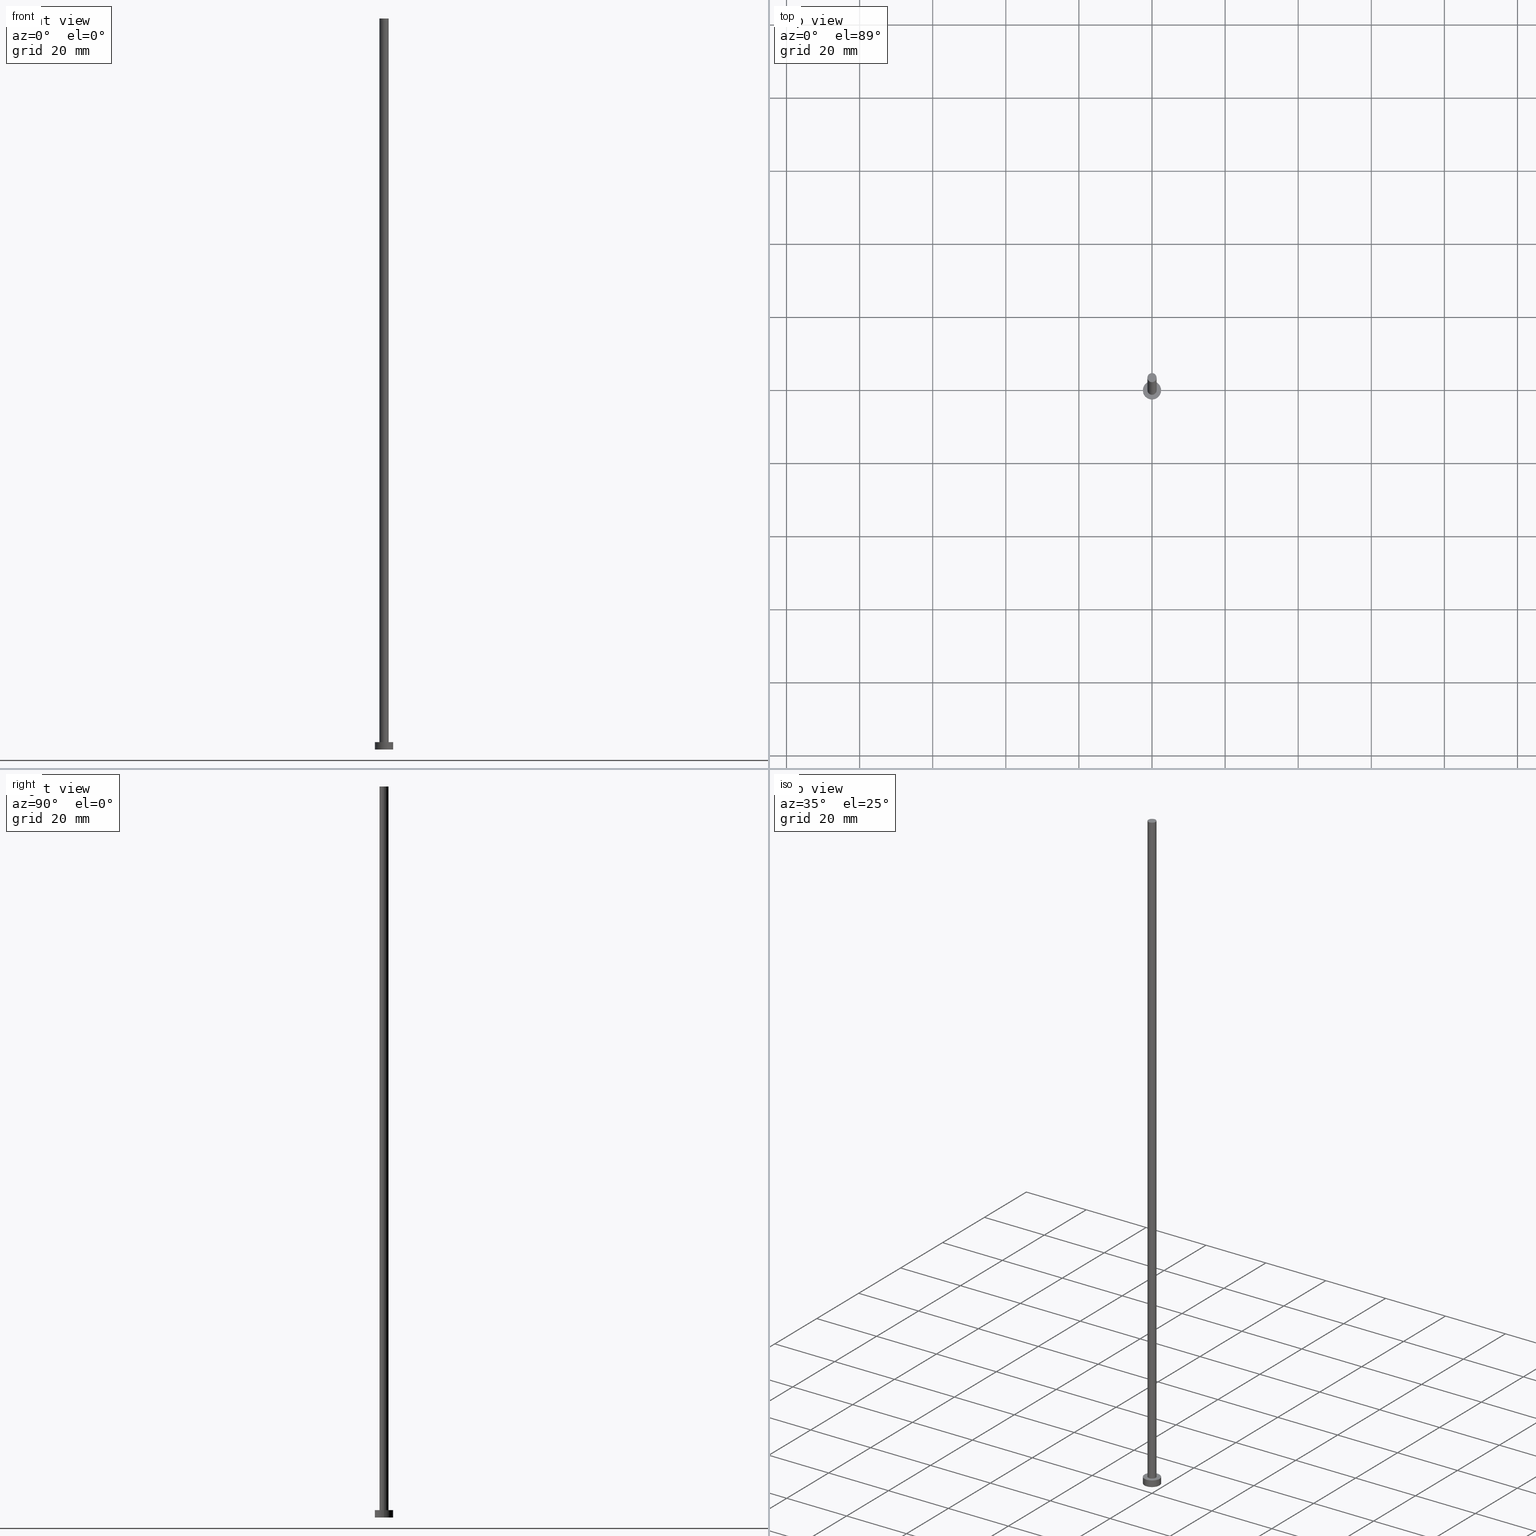
[diagram: canonical four-view strip — front | top / right | iso, engineering-drawing reading convention]
A machine part, canonical four-view strip (front | top / right | iso — engineering-drawing reading convention). The complete STEP part file that produces these views, byte-faithful:
ISO-10303-21;
HEADER;
FILE_DESCRIPTION (( 'STEP AP203' ),
    '1' );
FILE_NAME ('5830.STEP',
    '2023-02-13T17:04:26',
    ( '' ),
    ( '' ),
    'SwSTEP 2.0',
    'SolidWorks 2019',
    '' );
FILE_SCHEMA (( 'CONFIG_CONTROL_DESIGN' ));
ENDSEC;

DATA;
#1 = AXIS2_PLACEMENT_3D ( 'NONE', #15, #52, #35 ) ;
#2 = SECURITY_CLASSIFICATION_LEVEL ( 'unclassified' ) ;
#3 = VERTEX_POINT ( 'NONE', #130 ) ;
#4 = DATE_AND_TIME ( #204, #11 ) ;
#5 = APPROVAL ( #227, 'NEUR�EN�' ) ;
#6 = DIRECTION ( 'NONE',  ( -1.000000000000000000, 0.000000000000000000, 0.000000000000000000 ) ) ;
#7 =( GEOMETRIC_REPRESENTATION_CONTEXT ( 3 ) GLOBAL_UNCERTAINTY_ASSIGNED_CONTEXT ( ( #203 ) ) GLOBAL_UNIT_ASSIGNED_CONTEXT ( ( #12, #112, #243 ) ) REPRESENTATION_CONTEXT ( 'NONE', 'WORKASPACE' ) );
#8 = ORIENTED_EDGE ( 'NONE', *, *, #109, .T. ) ;
#9 = SHAPE_DEFINITION_REPRESENTATION ( #155, #94 ) ;
#10 = DIRECTION ( 'NONE',  ( 0.000000000000000000, 0.000000000000000000, 1.000000000000000000 ) ) ;
#11 = LOCAL_TIME ( 18, 4, 26.00000000000000000, #81 ) ;
#12 =( LENGTH_UNIT ( ) NAMED_UNIT ( * ) SI_UNIT ( .MILLI., .METRE. ) );
#13 = EDGE_LOOP ( 'NONE', ( #137, #209 ) ) ;
#14 = CYLINDRICAL_SURFACE ( 'NONE', #1, 1.250000000000000000 ) ;
#15 = CARTESIAN_POINT ( 'NONE',  ( 0.000000000000000000, 0.000000000000000000, 200.0000000000000000 ) ) ;
#16 = CARTESIAN_POINT ( 'NONE',  ( 0.000000000000000000, 0.000000000000000000, 2.000000000000000000 ) ) ;
#17 = APPROVAL_STATUS ( 'not_yet_approved' ) ;
#18 = CLOSED_SHELL ( 'NONE', ( #239, #30, #139, #184, #129, #40, #147 ) ) ;
#19 = CARTESIAN_POINT ( 'NONE',  ( 0.000000000000000000, 0.000000000000000000, 0.000000000000000000 ) ) ;
#20 = DIRECTION ( 'NONE',  ( 0.000000000000000000, 0.000000000000000000, 1.000000000000000000 ) ) ;
#21 = VECTOR ( 'NONE', #152, 1000.000000000000000 ) ;
#22 = ORIENTED_EDGE ( 'NONE', *, *, #109, .F. ) ;
#23 = PRODUCT_RELATED_PRODUCT_CATEGORY ( 'detail', '', ( #78 ) ) ;
#24 = AXIS2_PLACEMENT_3D ( 'NONE', #187, #214, #6 ) ;
#25 = ORIENTED_EDGE ( 'NONE', *, *, #70, .T. ) ;
#26 = CARTESIAN_POINT ( 'NONE',  ( 0.000000000000000000, 0.000000000000000000, 2.000000000000000000 ) ) ;
#27 = DIRECTION ( 'NONE',  ( -0.000000000000000000, -0.000000000000000000, -1.000000000000000000 ) ) ;
#28 = AXIS2_PLACEMENT_3D ( 'NONE', #69, #190, #199 ) ;
#29 = FACE_OUTER_BOUND ( 'NONE', #172, .T. ) ;
#30 = ADVANCED_FACE ( 'NONE', ( #232 ), #191, .T. ) ;
#31 = VERTEX_POINT ( 'NONE', #165 ) ;
#32 = FACE_BOUND ( 'NONE', #160, .T. ) ;
#33 = EDGE_LOOP ( 'NONE', ( #230, #68, #131, #175 ) ) ;
#34 = CIRCLE ( 'NONE', #180, 2.500000000000000000 ) ;
#35 = DIRECTION ( 'NONE',  ( -1.000000000000000000, 0.000000000000000000, 0.000000000000000000 ) ) ;
#36 = CIRCLE ( 'NONE', #183, 1.250000000000000000 ) ;
#37 = DIRECTION ( 'NONE',  ( 0.000000000000000000, 0.000000000000000000, 1.000000000000000000 ) ) ;
#38 = DIRECTION ( 'NONE',  ( 1.000000000000000000, 0.000000000000000000, 0.000000000000000000 ) ) ;
#39 = DATE_AND_TIME ( #182, #126 ) ;
#40 = ADVANCED_FACE ( 'NONE', ( #216 ), #108, .T. ) ;
#41 = PERSON_AND_ORGANIZATION ( #111, #202 ) ;
#42 = PERSON_AND_ORGANIZATION_ROLE ( 'design_owner' ) ;
#43 = VERTEX_POINT ( 'NONE', #88 ) ;
#44 = ORIENTED_EDGE ( 'NONE', *, *, #163, .F. ) ;
#45 = DIRECTION ( 'NONE',  ( -0.000000000000000000, -0.000000000000000000, -1.000000000000000000 ) ) ;
#46 = PLANE ( 'NONE',  #102 ) ;
#47 = CC_DESIGN_DATE_AND_TIME_ASSIGNMENT ( #241, #123, ( #80 ) ) ;
#48 = CC_DESIGN_PERSON_AND_ORGANIZATION_ASSIGNMENT ( #124, #42, ( #78 ) ) ;
#49 = DIRECTION ( 'NONE',  ( -0.000000000000000000, -0.000000000000000000, -1.000000000000000000 ) ) ;
#50 = LOCAL_TIME ( 18, 4, 26.00000000000000000, #83 ) ;
#51 = LINE ( 'NONE', #115, #61 ) ;
#52 = DIRECTION ( 'NONE',  ( -0.000000000000000000, -0.000000000000000000, -1.000000000000000000 ) ) ;
#53 = AXIS2_PLACEMENT_3D ( 'NONE', #254, #49, #97 ) ;
#54 = CARTESIAN_POINT ( 'NONE',  ( 1.250000000000000000, 1.530808498934191571E-16, 200.0000000000000000 ) ) ;
#55 = DIRECTION ( 'NONE',  ( -0.000000000000000000, -0.000000000000000000, -1.000000000000000000 ) ) ;
#56 = AXIS2_PLACEMENT_3D ( 'NONE', #19, #20, #85 ) ;
#57 = CARTESIAN_POINT ( 'NONE',  ( 0.000000000000000000, 0.000000000000000000, 0.000000000000000000 ) ) ;
#58 = DESIGN_CONTEXT ( 'detailed design', #142, 'design' ) ;
#59 = EDGE_LOOP ( 'NONE', ( #150, #75, #164, #8 ) ) ;
#60 = EDGE_CURVE ( 'NONE', #3, #31, #212, .T. ) ;
#61 = VECTOR ( 'NONE', #27, 1000.000000000000000 ) ;
#62 = APPLICATION_PROTOCOL_DEFINITION ( 'international standard', 'config_control_design', 1994, #128 ) ;
#63 = PERSON_AND_ORGANIZATION_ROLE ( 'creator' ) ;
#64 = CALENDAR_DATE ( 2023, 13, 2 ) ;
#65 = ORIENTED_EDGE ( 'NONE', *, *, #193, .F. ) ;
#66 = AXIS2_PLACEMENT_3D ( 'NONE', #176, #10, #92 ) ;
#67 = DIRECTION ( 'NONE',  ( 0.000000000000000000, 0.000000000000000000, 1.000000000000000000 ) ) ;
#68 = ORIENTED_EDGE ( 'NONE', *, *, #91, .T. ) ;
#69 = CARTESIAN_POINT ( 'NONE',  ( 0.000000000000000000, 0.000000000000000000, 0.000000000000000000 ) ) ;
#70 = EDGE_CURVE ( 'NONE', #196, #225, #229, .T. ) ;
#71 = CC_DESIGN_PERSON_AND_ORGANIZATION_ASSIGNMENT ( #41, #127, ( #149 ) ) ;
#72 = DIRECTION ( 'NONE',  ( 0.000000000000000000, 0.000000000000000000, 1.000000000000000000 ) ) ;
#73 = CARTESIAN_POINT ( 'NONE',  ( 2.500000000000000000, 3.061616997868383141E-16, 0.000000000000000000 ) ) ;
#74 = DIRECTION ( 'NONE',  ( 1.000000000000000000, 0.000000000000000000, -0.000000000000000000 ) ) ;
#75 = ORIENTED_EDGE ( 'NONE', *, *, #120, .F. ) ;
#76 = DIRECTION ( 'NONE',  ( 1.000000000000000000, 0.000000000000000000, -0.000000000000000000 ) ) ;
#77 = CARTESIAN_POINT ( 'NONE',  ( 0.000000000000000000, 0.000000000000000000, 2.000000000000000000 ) ) ;
#78 = PRODUCT ( '5830', '5830', '', ( #125 ) ) ;
#79 = CC_DESIGN_SECURITY_CLASSIFICATION ( #168, ( #149 ) ) ;
#80 = PRODUCT_DEFINITION ( 'NEZN�M�', '', #149, #58 ) ;
#81 = COORDINATED_UNIVERSAL_TIME_OFFSET ( 1, 0, .AHEAD. ) ;
#82 = DATE_AND_TIME ( #146, #50 ) ;
#83 = COORDINATED_UNIVERSAL_TIME_OFFSET ( 1, 0, .AHEAD. ) ;
#84 = EDGE_LOOP ( 'NONE', ( #25, #220 ) ) ;
#85 = DIRECTION ( 'NONE',  ( 1.000000000000000000, 0.000000000000000000, 0.000000000000000000 ) ) ;
#86 = EDGE_LOOP ( 'NONE', ( #65, #117, #185, #247 ) ) ;
#87 = CC_DESIGN_APPROVAL ( #99, ( #80 ) ) ;
#88 = CARTESIAN_POINT ( 'NONE',  ( 1.250000000000000000, 1.530808498934191571E-16, 2.000000000000000000 ) ) ;
#89 = DIRECTION ( 'NONE',  ( -0.000000000000000000, -0.000000000000000000, -1.000000000000000000 ) ) ;
#90 = EDGE_LOOP ( 'NONE', ( #22, #44 ) ) ;
#91 = EDGE_CURVE ( 'NONE', #228, #114, #98, .T. ) ;
#92 = DIRECTION ( 'NONE',  ( 1.000000000000000000, 0.000000000000000000, -0.000000000000000000 ) ) ;
#93 = LOCAL_TIME ( 18, 4, 26.00000000000000000, #244 ) ;
#94 = ADVANCED_BREP_SHAPE_REPRESENTATION ( '5830', ( #208, #56 ), #7 ) ;
#95 = CYLINDRICAL_SURFACE ( 'NONE', #53, 2.500000000000000000 ) ;
#96 = CARTESIAN_POINT ( 'NONE',  ( 0.000000000000000000, 0.000000000000000000, 200.0000000000000000 ) ) ;
#97 = DIRECTION ( 'NONE',  ( -1.000000000000000000, 0.000000000000000000, 0.000000000000000000 ) ) ;
#98 = LINE ( 'NONE', #237, #210 ) ;
#99 = APPROVAL ( #17, 'NEUR�EN�' ) ;
#100 = PLANE ( 'NONE',  #66 ) ;
#101 = PERSON_AND_ORGANIZATION_ROLE ( 'creator' ) ;
#102 = AXIS2_PLACEMENT_3D ( 'NONE', #250, #213, #74 ) ;
#103 = PERSON_AND_ORGANIZATION ( #111, #202 ) ;
#104 = PERSON_AND_ORGANIZATION ( #111, #202 ) ;
#105 = PERSON_AND_ORGANIZATION ( #111, #202 ) ;
#106 = ORIENTED_EDGE ( 'NONE', *, *, #205, .F. ) ;
#107 = CC_DESIGN_PERSON_AND_ORGANIZATION_ASSIGNMENT ( #105, #161, ( #168 ) ) ;
#108 = CYLINDRICAL_SURFACE ( 'NONE', #24, 1.250000000000000000 ) ;
#109 = EDGE_CURVE ( 'NONE', #31, #114, #116, .T. ) ;
#110 = FACE_OUTER_BOUND ( 'NONE', #13, .T. ) ;
#111 = PERSON ( 'NEUR�EN�', 'NEUR�EN�', 'NEUR�EN�', ('NEUR�EN�'), ('NEUR�EN�'), ('NEUR�EN�') ) ;
#112 =( NAMED_UNIT ( * ) PLANE_ANGLE_UNIT ( ) SI_UNIT ( $, .RADIAN. ) );
#113 = DIRECTION ( 'NONE',  ( 0.000000000000000000, 0.000000000000000000, 1.000000000000000000 ) ) ;
#114 = VERTEX_POINT ( 'NONE', #73 ) ;
#115 = CARTESIAN_POINT ( 'NONE',  ( 1.250000000000000000, 1.530808498934191571E-16, 200.0000000000000000 ) ) ;
#116 = CIRCLE ( 'NONE', #171, 2.500000000000000000 ) ;
#117 = ORIENTED_EDGE ( 'NONE', *, *, #70, .F. ) ;
#118 = CARTESIAN_POINT ( 'NONE',  ( -1.250000000000000000, 0.000000000000000000, 2.000000000000000000 ) ) ;
#119 = APPROVAL ( #255, 'NEUR�EN�' ) ;
#120 = EDGE_CURVE ( 'NONE', #3, #228, #34, .T. ) ;
#121 = FACE_OUTER_BOUND ( 'NONE', #90, .T. ) ;
#122 = PERSON_AND_ORGANIZATION ( #111, #202 ) ;
#123 = DATE_TIME_ROLE ( 'creation_date' ) ;
#124 = PERSON_AND_ORGANIZATION ( #111, #202 ) ;
#125 = MECHANICAL_CONTEXT ( 'NONE', #128, 'mechanical' ) ;
#126 = LOCAL_TIME ( 18, 4, 26.00000000000000000, #207 ) ;
#127 = PERSON_AND_ORGANIZATION_ROLE ( 'design_supplier' ) ;
#128 = APPLICATION_CONTEXT ( 'configuration controlled 3d designs of mechanical parts and assemblies' ) ;
#129 = ADVANCED_FACE ( 'NONE', ( #121 ), #100, .F. ) ;
#130 = CARTESIAN_POINT ( 'NONE',  ( -2.500000000000000000, 0.000000000000000000, 2.000000000000000000 ) ) ;
#131 = ORIENTED_EDGE ( 'NONE', *, *, #163, .T. ) ;
#132 = CARTESIAN_POINT ( 'NONE',  ( 0.000000000000000000, 0.000000000000000000, 2.000000000000000000 ) ) ;
#133 = DIRECTION ( 'NONE',  ( 1.000000000000000000, 0.000000000000000000, 0.000000000000000000 ) ) ;
#134 = APPROVAL_PERSON_ORGANIZATION ( #181, #99, #143 ) ;
#135 = LINE ( 'NONE', #248, #21 ) ;
#136 = FACE_OUTER_BOUND ( 'NONE', #84, .T. ) ;
#137 = ORIENTED_EDGE ( 'NONE', *, *, #120, .T. ) ;
#138 = CC_DESIGN_PERSON_AND_ORGANIZATION_ASSIGNMENT ( #103, #63, ( #149 ) ) ;
#139 = ADVANCED_FACE ( 'NONE', ( #198 ), #95, .T. ) ;
#140 = DIRECTION ( 'NONE',  ( 1.000000000000000000, 0.000000000000000000, 0.000000000000000000 ) ) ;
#141 = VECTOR ( 'NONE', #45, 1000.000000000000000 ) ;
#142 = APPLICATION_CONTEXT ( 'configuration controlled 3d designs of mechanical parts and assemblies' ) ;
#143 = APPROVAL_ROLE ( '' ) ;
#144 = AXIS2_PLACEMENT_3D ( 'NONE', #26, #89, #233 ) ;
#145 = APPROVAL_ROLE ( '' ) ;
#146 = CALENDAR_DATE ( 2023, 13, 2 ) ;
#147 = ADVANCED_FACE ( 'NONE', ( #136 ), #46, .T. ) ;
#148 = COORDINATED_UNIVERSAL_TIME_OFFSET ( 1, 0, .AHEAD. ) ;
#149 = PRODUCT_DEFINITION_FORMATION_WITH_SPECIFIED_SOURCE ( 'LIBOVOLN�', '', #78, .NOT_KNOWN. ) ;
#150 = ORIENTED_EDGE ( 'NONE', *, *, #91, .F. ) ;
#151 = ORIENTED_EDGE ( 'NONE', *, *, #192, .F. ) ;
#152 = DIRECTION ( 'NONE',  ( -0.000000000000000000, -0.000000000000000000, -1.000000000000000000 ) ) ;
#153 = CARTESIAN_POINT ( 'NONE',  ( 0.000000000000000000, 0.000000000000000000, 2.000000000000000000 ) ) ;
#154 = DIRECTION ( 'NONE',  ( 0.000000000000000000, 0.000000000000000000, 1.000000000000000000 ) ) ;
#155 = PRODUCT_DEFINITION_SHAPE ( 'NONE', 'NONE',  #80 ) ;
#156 = AXIS2_PLACEMENT_3D ( 'NONE', #153, #72, #133 ) ;
#157 = CC_DESIGN_APPROVAL ( #5, ( #149 ) ) ;
#158 = CC_DESIGN_DATE_AND_TIME_ASSIGNMENT ( #82, #179, ( #168 ) ) ;
#159 = APPROVAL_DATE_TIME ( #4, #119 ) ;
#160 = EDGE_LOOP ( 'NONE', ( #189, #223 ) ) ;
#161 = PERSON_AND_ORGANIZATION_ROLE ( 'classification_officer' ) ;
#162 = EDGE_CURVE ( 'NONE', #249, #43, #236, .T. ) ;
#163 = EDGE_CURVE ( 'NONE', #114, #31, #167, .T. ) ;
#164 = ORIENTED_EDGE ( 'NONE', *, *, #60, .T. ) ;
#165 = CARTESIAN_POINT ( 'NONE',  ( -2.500000000000000000, 0.000000000000000000, 0.000000000000000000 ) ) ;
#166 = APPLICATION_PROTOCOL_DEFINITION ( 'international standard', 'config_control_design', 1994, #142 ) ;
#167 = CIRCLE ( 'NONE', #28, 2.500000000000000000 ) ;
#168 = SECURITY_CLASSIFICATION ( '', '', #2 ) ;
#169 = ORIENTED_EDGE ( 'NONE', *, *, #251, .T. ) ;
#170 = CARTESIAN_POINT ( 'NONE',  ( -2.500000000000000000, 0.000000000000000000, 2.000000000000000000 ) ) ;
#171 = AXIS2_PLACEMENT_3D ( 'NONE', #57, #37, #140 ) ;
#172 = EDGE_LOOP ( 'NONE', ( #151, #245, #169, #106 ) ) ;
#173 = CARTESIAN_POINT ( 'NONE',  ( 0.000000000000000000, 0.000000000000000000, 2.000000000000000000 ) ) ;
#174 = LOCAL_TIME ( 18, 4, 26.00000000000000000, #148 ) ;
#175 = ORIENTED_EDGE ( 'NONE', *, *, #60, .F. ) ;
#176 = CARTESIAN_POINT ( 'NONE',  ( 0.000000000000000000, 0.000000000000000000, 0.000000000000000000 ) ) ;
#177 = PLANE ( 'NONE',  #188 ) ;
#178 = AXIS2_PLACEMENT_3D ( 'NONE', #132, #234, #221 ) ;
#179 = DATE_TIME_ROLE ( 'classification_date' ) ;
#180 = AXIS2_PLACEMENT_3D ( 'NONE', #16, #201, #38 ) ;
#181 = PERSON_AND_ORGANIZATION ( #111, #202 ) ;
#182 = CALENDAR_DATE ( 2023, 13, 2 ) ;
#183 = AXIS2_PLACEMENT_3D ( 'NONE', #77, #113, #195 ) ;
#184 = ADVANCED_FACE ( 'NONE', ( #32, #110 ), #177, .T. ) ;
#185 = ORIENTED_EDGE ( 'NONE', *, *, #205, .T. ) ;
#186 = APPROVAL_ROLE ( '' ) ;
#187 = CARTESIAN_POINT ( 'NONE',  ( 0.000000000000000000, 0.000000000000000000, 200.0000000000000000 ) ) ;
#188 = AXIS2_PLACEMENT_3D ( 'NONE', #173, #252, #76 ) ;
#189 = ORIENTED_EDGE ( 'NONE', *, *, #162, .F. ) ;
#190 = DIRECTION ( 'NONE',  ( 0.000000000000000000, 0.000000000000000000, 1.000000000000000000 ) ) ;
#191 = CYLINDRICAL_SURFACE ( 'NONE', #144, 2.500000000000000000 ) ;
#192 = EDGE_CURVE ( 'NONE', #225, #196, #231, .T. ) ;
#193 = EDGE_CURVE ( 'NONE', #225, #43, #51, .T. ) ;
#194 = CC_DESIGN_APPROVAL ( #119, ( #168 ) ) ;
#195 = DIRECTION ( 'NONE',  ( 1.000000000000000000, 0.000000000000000000, 0.000000000000000000 ) ) ;
#196 = VERTEX_POINT ( 'NONE', #217 ) ;
#197 = AXIS2_PLACEMENT_3D ( 'NONE', #246, #67, #253 ) ;
#198 = FACE_OUTER_BOUND ( 'NONE', #59, .T. ) ;
#199 = DIRECTION ( 'NONE',  ( 1.000000000000000000, 0.000000000000000000, 0.000000000000000000 ) ) ;
#200 = CIRCLE ( 'NONE', #178, 2.500000000000000000 ) ;
#201 = DIRECTION ( 'NONE',  ( 0.000000000000000000, 0.000000000000000000, 1.000000000000000000 ) ) ;
#202 = ORGANIZATION ( 'NEUR�EN�', 'NEUR�EN�', '' ) ;
#203 = UNCERTAINTY_MEASURE_WITH_UNIT (LENGTH_MEASURE( 1.000000000000000082E-05 ), #12, 'distance_accuracy_value', 'NONE');
#204 = CALENDAR_DATE ( 2023, 13, 2 ) ;
#205 = EDGE_CURVE ( 'NONE', #196, #249, #135, .T. ) ;
#206 = CALENDAR_DATE ( 2023, 13, 2 ) ;
#207 = COORDINATED_UNIVERSAL_TIME_OFFSET ( 1, 0, .AHEAD. ) ;
#208 = MANIFOLD_SOLID_BREP ( 'P�idat vysunut�m3', #18 ) ;
#209 = ORIENTED_EDGE ( 'NONE', *, *, #215, .T. ) ;
#210 = VECTOR ( 'NONE', #55, 1000.000000000000000 ) ;
#211 = CC_DESIGN_PERSON_AND_ORGANIZATION_ASSIGNMENT ( #104, #101, ( #80 ) ) ;
#212 = LINE ( 'NONE', #170, #141 ) ;
#213 = DIRECTION ( 'NONE',  ( 0.000000000000000000, 0.000000000000000000, 1.000000000000000000 ) ) ;
#214 = DIRECTION ( 'NONE',  ( -0.000000000000000000, -0.000000000000000000, -1.000000000000000000 ) ) ;
#215 = EDGE_CURVE ( 'NONE', #228, #3, #200, .T. ) ;
#216 = FACE_OUTER_BOUND ( 'NONE', #86, .T. ) ;
#217 = CARTESIAN_POINT ( 'NONE',  ( -1.250000000000000000, 0.000000000000000000, 200.0000000000000000 ) ) ;
#218 = APPROVAL_PERSON_ORGANIZATION ( #122, #119, #186 ) ;
#219 = CARTESIAN_POINT ( 'NONE',  ( 2.500000000000000000, 3.061616997868383141E-16, 2.000000000000000000 ) ) ;
#220 = ORIENTED_EDGE ( 'NONE', *, *, #192, .T. ) ;
#221 = DIRECTION ( 'NONE',  ( 1.000000000000000000, 0.000000000000000000, 0.000000000000000000 ) ) ;
#222 = AXIS2_PLACEMENT_3D ( 'NONE', #96, #154, #235 ) ;
#223 = ORIENTED_EDGE ( 'NONE', *, *, #251, .F. ) ;
#224 = DATE_AND_TIME ( #206, #174 ) ;
#225 = VERTEX_POINT ( 'NONE', #54 ) ;
#226 = PERSON_AND_ORGANIZATION ( #111, #202 ) ;
#227 = APPROVAL_STATUS ( 'not_yet_approved' ) ;
#228 = VERTEX_POINT ( 'NONE', #219 ) ;
#229 = CIRCLE ( 'NONE', #197, 1.250000000000000000 ) ;
#230 = ORIENTED_EDGE ( 'NONE', *, *, #215, .F. ) ;
#231 = CIRCLE ( 'NONE', #222, 1.250000000000000000 ) ;
#232 = FACE_OUTER_BOUND ( 'NONE', #33, .T. ) ;
#233 = DIRECTION ( 'NONE',  ( -1.000000000000000000, 0.000000000000000000, 0.000000000000000000 ) ) ;
#234 = DIRECTION ( 'NONE',  ( 0.000000000000000000, 0.000000000000000000, 1.000000000000000000 ) ) ;
#235 = DIRECTION ( 'NONE',  ( 1.000000000000000000, 0.000000000000000000, 0.000000000000000000 ) ) ;
#236 = CIRCLE ( 'NONE', #156, 1.250000000000000000 ) ;
#237 = CARTESIAN_POINT ( 'NONE',  ( 2.500000000000000000, 3.061616997868383141E-16, 2.000000000000000000 ) ) ;
#238 = APPROVAL_PERSON_ORGANIZATION ( #226, #5, #145 ) ;
#239 = ADVANCED_FACE ( 'NONE', ( #29 ), #14, .T. ) ;
#240 = APPROVAL_DATE_TIME ( #224, #99 ) ;
#241 = DATE_AND_TIME ( #64, #93 ) ;
#242 = APPROVAL_DATE_TIME ( #39, #5 ) ;
#243 =( NAMED_UNIT ( * ) SI_UNIT ( $, .STERADIAN. ) SOLID_ANGLE_UNIT ( ) );
#244 = COORDINATED_UNIVERSAL_TIME_OFFSET ( 1, 0, .AHEAD. ) ;
#245 = ORIENTED_EDGE ( 'NONE', *, *, #193, .T. ) ;
#246 = CARTESIAN_POINT ( 'NONE',  ( 0.000000000000000000, 0.000000000000000000, 200.0000000000000000 ) ) ;
#247 = ORIENTED_EDGE ( 'NONE', *, *, #162, .T. ) ;
#248 = CARTESIAN_POINT ( 'NONE',  ( -1.250000000000000000, 0.000000000000000000, 200.0000000000000000 ) ) ;
#249 = VERTEX_POINT ( 'NONE', #118 ) ;
#250 = CARTESIAN_POINT ( 'NONE',  ( 0.000000000000000000, 0.000000000000000000, 200.0000000000000000 ) ) ;
#251 = EDGE_CURVE ( 'NONE', #43, #249, #36, .T. ) ;
#252 = DIRECTION ( 'NONE',  ( 0.000000000000000000, 0.000000000000000000, 1.000000000000000000 ) ) ;
#253 = DIRECTION ( 'NONE',  ( 1.000000000000000000, 0.000000000000000000, 0.000000000000000000 ) ) ;
#254 = CARTESIAN_POINT ( 'NONE',  ( 0.000000000000000000, 0.000000000000000000, 2.000000000000000000 ) ) ;
#255 = APPROVAL_STATUS ( 'not_yet_approved' ) ;
ENDSEC;
END-ISO-10303-21;
